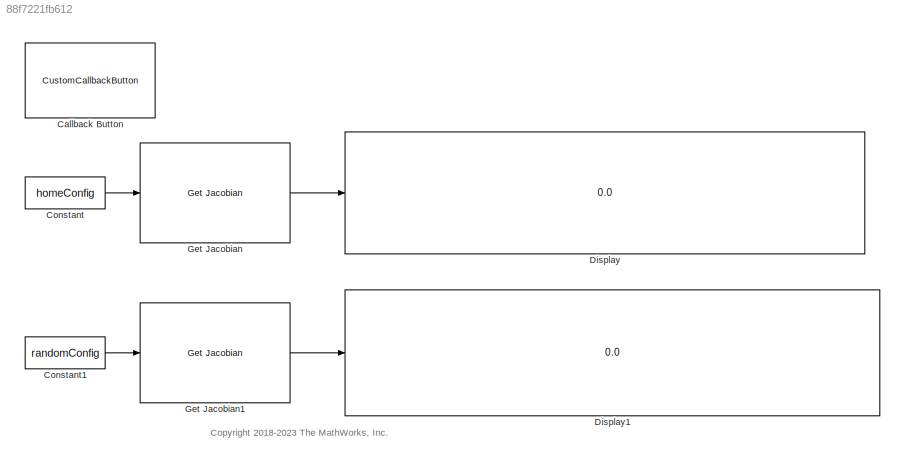
MODEL slx_88f7221fb612
KIND model
CONFIG SolverName = VariableStepAuto
BLOCK [CustomCallbackButton] Callback Button
  Configuration = {"components":[{"name":"BackgroundImageComponent","settings":{"image":{"size":[0,0],"src":"default","srcOrientation":"Right"},"position":[0,0,1,1]}},{"name":"ButtonStateComponent","settings":{"buttonType":"momentary","clickFcn":"load('exampleLBR.mat','lbr')\nlbr.DataFormat = 'column';\n\nhomeConfig = homeConfiguration(lbr);\nrandomConfig = randomConfiguration(lbr);\n","onValue":1,"position":[0,0,1...<+1907ch>
  CustomBackgroundColor = {"color":[0.9568627451,0.9568627451,0.9568627451],"show":true}
BLOCK [Constant] Constant
  Value = homeConfig
  VectorParams1D = off
BLOCK [Constant] Constant1
  Value = randomConfig
  VectorParams1D = off
BLOCK [Display] Display
  Decimation = 1
BLOCK [Display] Display1
  Decimation = 1
BLOCK [Reference] Get Jacobian  REF=robotmaniplib/Get Jacobian
  SourceBlock = robotmaniplib/Get Jacobian
  SourceType = Get Jacobian
BLOCK [Reference] Get Jacobian1  REF=robotmaniplib/Get Jacobian
  SourceBlock = robotmaniplib/Get Jacobian
  SourceType = Get Jacobian
ANNOTATION (root): <copyright redacted>
LINE Constant1:1 -> Get Jacobian1:1
LINE Constant:1 -> Get Jacobian:1
LINE Get Jacobian1:1 -> Display1:1
LINE Get Jacobian:1 -> Display:1
